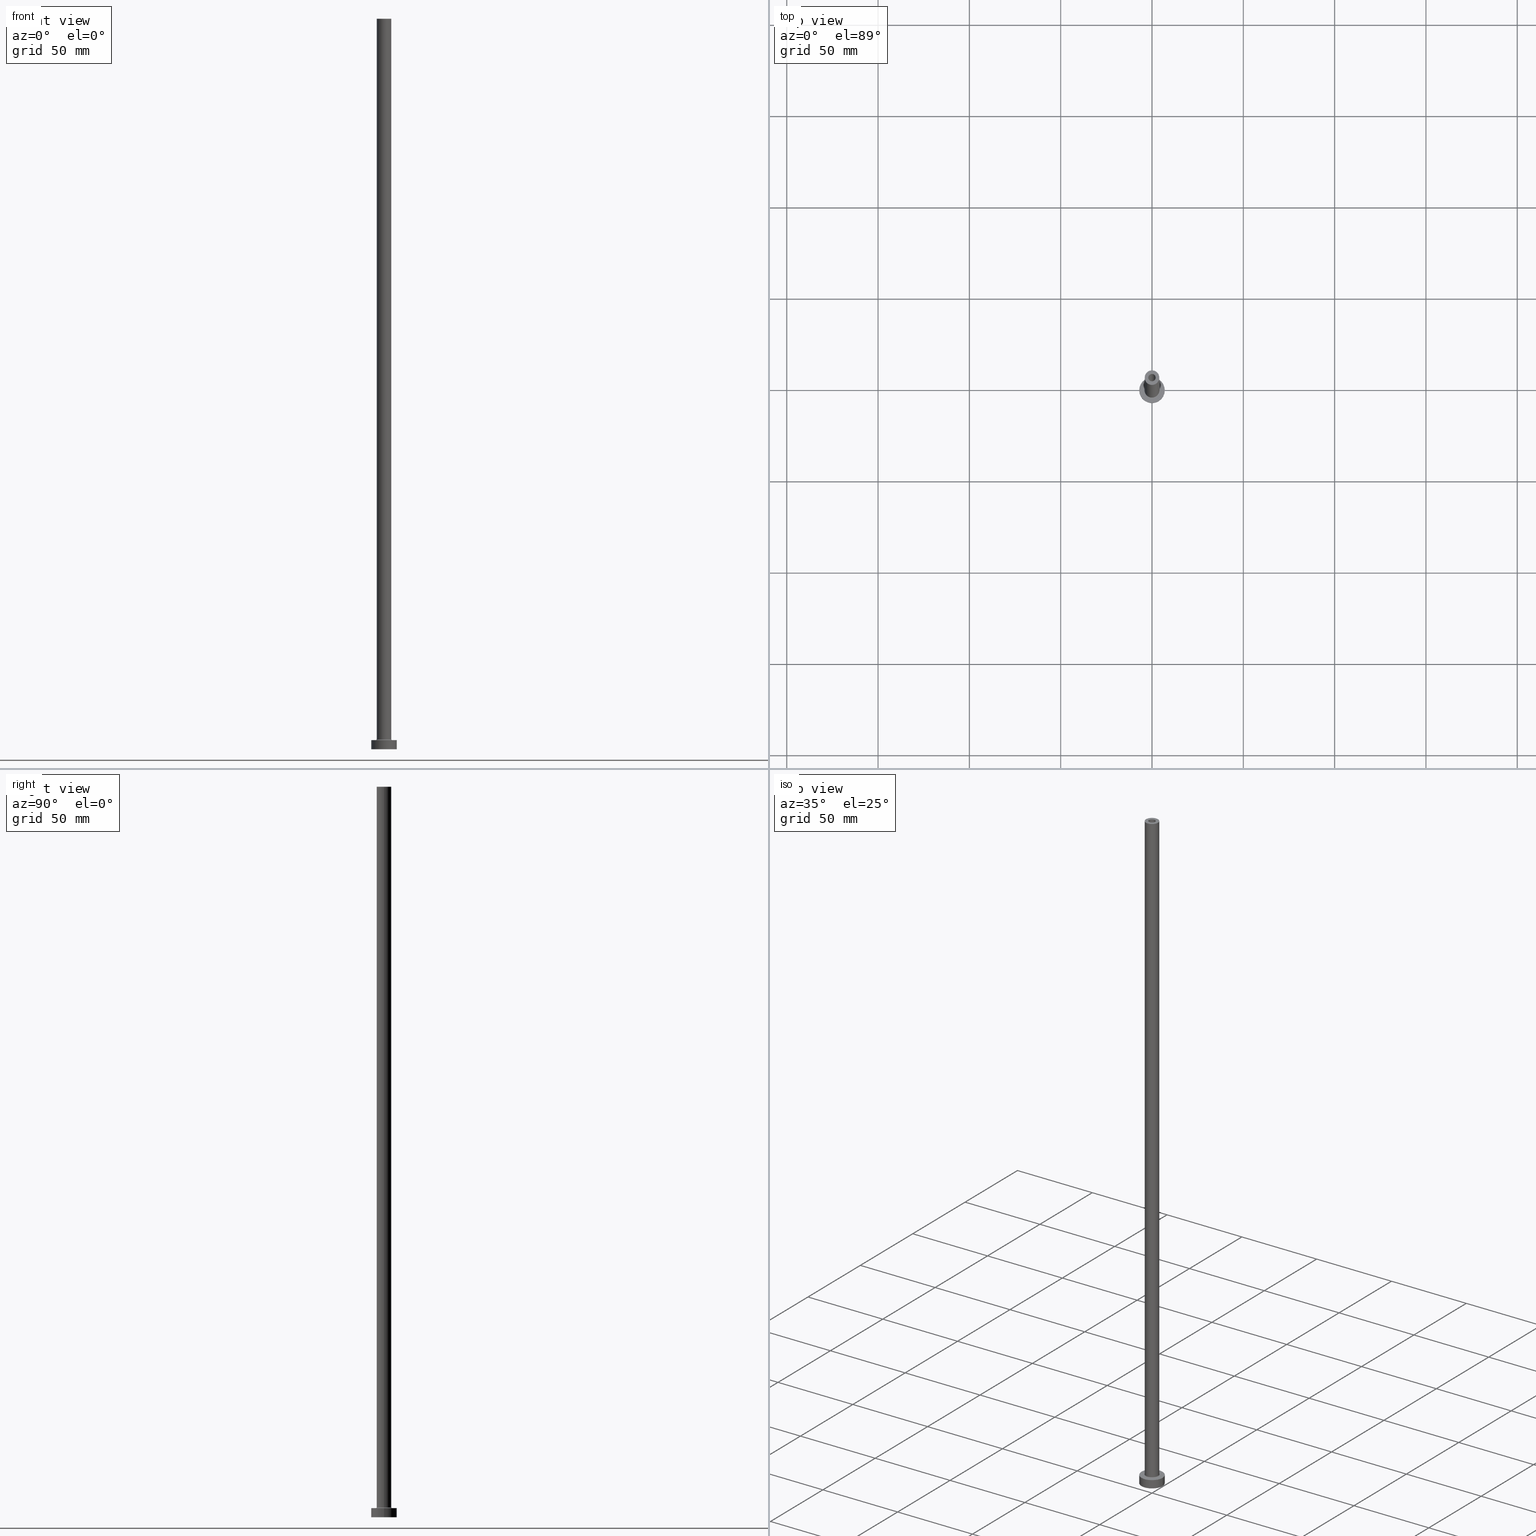
[diagram: canonical four-view strip — front | top / right | iso, engineering-drawing reading convention]
A machine part, canonical four-view strip (front | top / right | iso — engineering-drawing reading convention). The complete STEP part file that produces these views, byte-faithful:
ISO-10303-21;
HEADER;
FILE_DESCRIPTION (( 'STEP AP203' ),
    '1' );
FILE_NAME ('2fec.STEP',
    '2023-02-13T17:37:32',
    ( '' ),
    ( '' ),
    'SwSTEP 2.0',
    'SolidWorks 2019',
    '' );
FILE_SCHEMA (( 'CONFIG_CONTROL_DESIGN' ));
ENDSEC;

DATA;
#1 = DIRECTION ( 'NONE',  ( 0.000000000000000000, 0.000000000000000000, 1.000000000000000000 ) ) ;
#2 = AXIS2_PLACEMENT_3D ( 'NONE', #445, #328, #341 ) ;
#3 = DIRECTION ( 'NONE',  ( -0.000000000000000000, -0.000000000000000000, -1.000000000000000000 ) ) ;
#4 = SECURITY_CLASSIFICATION_LEVEL ( 'unclassified' ) ;
#5 = DIRECTION ( 'NONE',  ( 0.000000000000000000, 0.000000000000000000, 1.000000000000000000 ) ) ;
#6 = DIRECTION ( 'NONE',  ( -1.000000000000000000, 0.000000000000000000, 0.000000000000000000 ) ) ;
#7 = AXIS2_PLACEMENT_3D ( 'NONE', #23, #311, #27 ) ;
#8 = FACE_BOUND ( 'NONE', #199, .T. ) ;
#9 = PRODUCT_DEFINITION ( 'NEZN�M�', '', #44, #202 ) ;
#10 = CARTESIAN_POINT ( 'NONE',  ( -4.000000000000000000, 0.000000000000000000, 5.500000000000005329 ) ) ;
#11 = ORIENTED_EDGE ( 'NONE', *, *, #79, .F. ) ;
#12 = ADVANCED_BREP_SHAPE_REPRESENTATION ( '2fec', ( #240, #331 ), #357 ) ;
#13 = DIRECTION ( 'NONE',  ( 0.000000000000000000, 0.000000000000000000, 1.000000000000000000 ) ) ;
#14 = EDGE_LOOP ( 'NONE', ( #300, #56, #333, #275 ) ) ;
#15 = AXIS2_PLACEMENT_3D ( 'NONE', #271, #201, #278 ) ;
#16 = LOCAL_TIME ( 18, 37, 32.00000000000000000, #143 ) ;
#17 = CYLINDRICAL_SURFACE ( 'NONE', #2, 2.149999999999999911 ) ;
#18 = ORIENTED_EDGE ( 'NONE', *, *, #21, .T. ) ;
#19 = ORIENTED_EDGE ( 'NONE', *, *, #105, .F. ) ;
#20 = CYLINDRICAL_SURFACE ( 'NONE', #161, 2.149999999999999911 ) ;
#21 = EDGE_CURVE ( 'NONE', #312, #167, #282, .T. ) ;
#22 = ORIENTED_EDGE ( 'NONE', *, *, #253, .F. ) ;
#23 = CARTESIAN_POINT ( 'NONE',  ( 0.000000000000000000, 0.000000000000000000, 5.500000000000005329 ) ) ;
#24 = ORIENTED_EDGE ( 'NONE', *, *, #315, .F. ) ;
#25 = EDGE_CURVE ( 'NONE', #292, #51, #329, .T. ) ;
#26 = ORIENTED_EDGE ( 'NONE', *, *, #374, .F. ) ;
#27 = DIRECTION ( 'NONE',  ( 1.000000000000000000, 0.000000000000000000, 0.000000000000000000 ) ) ;
#28 = VERTEX_POINT ( 'NONE', #60 ) ;
#29 = AXIS2_PLACEMENT_3D ( 'NONE', #326, #72, #31 ) ;
#30 = AXIS2_PLACEMENT_3D ( 'NONE', #226, #192, #80 ) ;
#31 = DIRECTION ( 'NONE',  ( 1.000000000000000000, 0.000000000000000000, 0.000000000000000000 ) ) ;
#32 = DIRECTION ( 'NONE',  ( -0.000000000000000000, -0.000000000000000000, -1.000000000000000000 ) ) ;
#33 = DIRECTION ( 'NONE',  ( 1.000000000000000000, 0.000000000000000000, -0.000000000000000000 ) ) ;
#34 = APPROVAL_DATE_TIME ( #279, #198 ) ;
#35 = DIRECTION ( 'NONE',  ( -0.000000000000000000, -0.000000000000000000, -1.000000000000000000 ) ) ;
#36 = CIRCLE ( 'NONE', #30, 2.000000000000000000 ) ;
#37 = APPROVAL_STATUS ( 'not_yet_approved' ) ;
#38 = PLANE ( 'NONE',  #437 ) ;
#39 = CARTESIAN_POINT ( 'NONE',  ( 0.000000000000000000, 0.000000000000000000, 0.000000000000000000 ) ) ;
#40 = EDGE_CURVE ( 'NONE', #382, #28, #145, .T. ) ;
#41 = DIRECTION ( 'NONE',  ( 0.000000000000000000, -1.000000000000000000, 0.000000000000000000 ) ) ;
#42 = ADVANCED_FACE ( 'NONE', ( #98 ), #402, .F. ) ;
#43 = ORIENTED_EDGE ( 'NONE', *, *, #334, .F. ) ;
#44 = PRODUCT_DEFINITION_FORMATION_WITH_SPECIFIED_SOURCE ( 'LIBOVOLN�', '', #53, .NOT_KNOWN. ) ;
#45 = CARTESIAN_POINT ( 'NONE',  ( 0.000000000000000000, 0.000000000000000000, 5.000000000000000000 ) ) ;
#46 = ORIENTED_EDGE ( 'NONE', *, *, #435, .F. ) ;
#47 = PRODUCT_DEFINITION_SHAPE ( 'NONE', 'NONE',  #9 ) ;
#48 = FACE_OUTER_BOUND ( 'NONE', #135, .T. ) ;
#49 = EDGE_LOOP ( 'NONE', ( #11, #458, #156, #65 ) ) ;
#50 = CARTESIAN_POINT ( 'NONE',  ( -4.500000000000000888, 5.510910596163088569E-16, 5.000000000000002665 ) ) ;
#51 = VERTEX_POINT ( 'NONE', #208 ) ;
#52 = VECTOR ( 'NONE', #3, 1000.000000000000000 ) ;
#53 = PRODUCT ( '2fec', '2fec', '', ( #92 ) ) ;
#54 = VECTOR ( 'NONE', #64, 1000.000000000000000 ) ;
#55 = FACE_OUTER_BOUND ( 'NONE', #306, .T. ) ;
#56 = ORIENTED_EDGE ( 'NONE', *, *, #178, .T. ) ;
#57 = UNCERTAINTY_MEASURE_WITH_UNIT (LENGTH_MEASURE( 1.000000000000000082E-05 ), #348, 'distance_accuracy_value', 'NONE');
#58 = DIRECTION ( 'NONE',  ( 1.000000000000000000, 0.000000000000000000, 0.000000000000000000 ) ) ;
#59 = DIRECTION ( 'NONE',  ( 1.000000000000000000, 0.000000000000000000, 0.000000000000000000 ) ) ;
#60 = CARTESIAN_POINT ( 'NONE',  ( 4.000000000000000000, 4.898587196589411843E-16, 400.0000000000000000 ) ) ;
#61 = EDGE_CURVE ( 'NONE', #302, #190, #99, .T. ) ;
#62 = CIRCLE ( 'NONE', #383, 7.000000000000000000 ) ;
#63 = ORIENTED_EDGE ( 'NONE', *, *, #399, .F. ) ;
#64 = DIRECTION ( 'NONE',  ( -0.000000000000000000, -0.000000000000000000, -1.000000000000000000 ) ) ;
#65 = ORIENTED_EDGE ( 'NONE', *, *, #374, .T. ) ;
#66 = EDGE_LOOP ( 'NONE', ( #206, #90 ) ) ;
#67 = PERSON_AND_ORGANIZATION_ROLE ( 'creator' ) ;
#68 = CARTESIAN_POINT ( 'NONE',  ( 0.000000000000000000, 0.000000000000000000, 400.0000000000000000 ) ) ;
#69 = APPROVAL_ROLE ( '' ) ;
#70 = DIRECTION ( 'NONE',  ( 0.000000000000000000, 0.000000000000000000, 1.000000000000000000 ) ) ;
#71 = PERSON_AND_ORGANIZATION ( #308, #115 ) ;
#72 = DIRECTION ( 'NONE',  ( -0.000000000000000000, -0.000000000000000000, -1.000000000000000000 ) ) ;
#73 = APPROVAL_DATE_TIME ( #111, #401 ) ;
#74 = CIRCLE ( 'NONE', #136, 2.149999999999999911 ) ;
#75 = CARTESIAN_POINT ( 'NONE',  ( 0.000000000000000000, 0.000000000000000000, 0.000000000000000000 ) ) ;
#76 = CIRCLE ( 'NONE', #100, 4.000000000000000000 ) ;
#77 = DIRECTION ( 'NONE',  ( -0.000000000000000000, -0.000000000000000000, -1.000000000000000000 ) ) ;
#78 = ADVANCED_FACE ( 'NONE', ( #148, #391 ), #434, .T. ) ;
#79 = EDGE_CURVE ( 'NONE', #28, #81, #460, .T. ) ;
#80 = DIRECTION ( 'NONE',  ( 1.000000000000000000, 0.000000000000000000, 0.000000000000000000 ) ) ;
#81 = VERTEX_POINT ( 'NONE', #286 ) ;
#82 = DIRECTION ( 'NONE',  ( 1.000000000000000000, 0.000000000000000000, 0.000000000000000000 ) ) ;
#83 = VERTEX_POINT ( 'NONE', #360 ) ;
#84 = TOROIDAL_SURFACE ( 'NONE', #7, 4.500000000000000888, 0.5000000000000000000 ) ;
#85 = ADVANCED_FACE ( 'NONE', ( #397 ), #180, .T. ) ;
#86 = CARTESIAN_POINT ( 'NONE',  ( 0.000000000000000000, 0.000000000000000000, 5.500000000000005329 ) ) ;
#87 = DIRECTION ( 'NONE',  ( 0.000000000000000000, 0.000000000000000000, 1.000000000000000000 ) ) ;
#88 = ORIENTED_EDGE ( 'NONE', *, *, #175, .T. ) ;
#89 = DIRECTION ( 'NONE',  ( 0.000000000000000000, 0.000000000000000000, -1.000000000000000000 ) ) ;
#90 = ORIENTED_EDGE ( 'NONE', *, *, #310, .F. ) ;
#91 = AXIS2_PLACEMENT_3D ( 'NONE', #159, #77, #6 ) ;
#92 = MECHANICAL_CONTEXT ( 'NONE', #197, 'mechanical' ) ;
#93 = VERTEX_POINT ( 'NONE', #216 ) ;
#94 = CYLINDRICAL_SURFACE ( 'NONE', #222, 7.000000000000000000 ) ;
#95 = EDGE_CURVE ( 'NONE', #120, #456, #74, .T. ) ;
#96 = DIRECTION ( 'NONE',  ( 1.000000000000000000, 0.000000000000000000, 0.000000000000000000 ) ) ;
#97 = FACE_OUTER_BOUND ( 'NONE', #384, .T. ) ;
#98 = FACE_OUTER_BOUND ( 'NONE', #298, .T. ) ;
#99 = CIRCLE ( 'NONE', #29, 2.149999999999999911 ) ;
#100 = AXIS2_PLACEMENT_3D ( 'NONE', #110, #366, #281 ) ;
#101 = LINE ( 'NONE', #452, #54 ) ;
#102 = ORIENTED_EDGE ( 'NONE', *, *, #399, .T. ) ;
#103 = CALENDAR_DATE ( 2023, 13, 2 ) ;
#104 = ORIENTED_EDGE ( 'NONE', *, *, #320, .T. ) ;
#105 = EDGE_CURVE ( 'NONE', #338, #312, #195, .T. ) ;
#106 = PERSON_AND_ORGANIZATION_ROLE ( 'design_supplier' ) ;
#107 = CARTESIAN_POINT ( 'NONE',  ( 2.000000000000000000, 2.449293598294705921E-16, 400.0000000000000000 ) ) ;
#108 = AXIS2_PLACEMENT_3D ( 'NONE', #205, #354, #345 ) ;
#109 = DIRECTION ( 'NONE',  ( 0.000000000000000000, 0.000000000000000000, 1.000000000000000000 ) ) ;
#110 = CARTESIAN_POINT ( 'NONE',  ( 0.000000000000000000, 0.000000000000000000, 5.500000000000005329 ) ) ;
#111 = DATE_AND_TIME ( #103, #138 ) ;
#112 = CARTESIAN_POINT ( 'NONE',  ( 4.500000000000000888, 0.000000000000000000, 5.000000000000002665 ) ) ;
#113 = AXIS2_PLACEMENT_3D ( 'NONE', #185, #150, #142 ) ;
#114 = CARTESIAN_POINT ( 'NONE',  ( 0.000000000000000000, 0.000000000000000000, 400.0000000000000000 ) ) ;
#115 = ORGANIZATION ( 'NEUR�EN�', 'NEUR�EN�', '' ) ;
#116 = EDGE_CURVE ( 'NONE', #51, #128, #322, .T. ) ;
#117 = DIRECTION ( 'NONE',  ( 1.000000000000000000, 0.000000000000000000, 0.000000000000000000 ) ) ;
#118 = ORIENTED_EDGE ( 'NONE', *, *, #253, .T. ) ;
#119 = CARTESIAN_POINT ( 'NONE',  ( 2.149999999999999911, 2.632990618166809235E-16, 361.0811183182044033 ) ) ;
#120 = VERTEX_POINT ( 'NONE', #359 ) ;
#121 = DIRECTION ( 'NONE',  ( 0.000000000000000000, 0.000000000000000000, 1.000000000000000000 ) ) ;
#122 = CC_DESIGN_PERSON_AND_ORGANIZATION_ASSIGNMENT ( #426, #106, ( #44 ) ) ;
#123 = AXIS2_PLACEMENT_3D ( 'NONE', #229, #87, #193 ) ;
#124 = CARTESIAN_POINT ( 'NONE',  ( 0.000000000000000000, 0.000000000000000000, 5.000000000000000000 ) ) ;
#125 = ORIENTED_EDGE ( 'NONE', *, *, #320, .F. ) ;
#126 = DIRECTION ( 'NONE',  ( -1.000000000000000000, 0.000000000000000000, 0.000000000000000000 ) ) ;
#127 = EDGE_CURVE ( 'NONE', #167, #312, #316, .T. ) ;
#128 = VERTEX_POINT ( 'NONE', #289 ) ;
#129 = AXIS2_PLACEMENT_3D ( 'NONE', #405, #41, #189 ) ;
#130 = APPLICATION_PROTOCOL_DEFINITION ( 'international standard', 'config_control_design', 1994, #197 ) ;
#131 = ORIENTED_EDGE ( 'NONE', *, *, #334, .T. ) ;
#132 = DIRECTION ( 'NONE',  ( -0.000000000000000000, -0.000000000000000000, -1.000000000000000000 ) ) ;
#133 = ORIENTED_EDGE ( 'NONE', *, *, #154, .F. ) ;
#134 = FACE_OUTER_BOUND ( 'NONE', #261, .T. ) ;
#135 = EDGE_LOOP ( 'NONE', ( #24, #425, #380, #416 ) ) ;
#136 = AXIS2_PLACEMENT_3D ( 'NONE', #184, #1, #356 ) ;
#137 = CIRCLE ( 'NONE', #210, 4.000000000000000000 ) ;
#138 = LOCAL_TIME ( 18, 37, 32.00000000000000000, #174 ) ;
#139 = CARTESIAN_POINT ( 'NONE',  ( 0.000000000000000000, 0.000000000000000000, 5.000000000000000000 ) ) ;
#140 = EDGE_LOOP ( 'NONE', ( #46, #417, #411, #355 ) ) ;
#141 = APPROVAL_ROLE ( '' ) ;
#142 = DIRECTION ( 'NONE',  ( 1.000000000000000000, 0.000000000000000000, 0.000000000000000000 ) ) ;
#143 = COORDINATED_UNIVERSAL_TIME_OFFSET ( 1, 0, .AHEAD. ) ;
#144 = DIRECTION ( 'NONE',  ( 1.000000000000000000, 0.000000000000000000, 0.000000000000000000 ) ) ;
#145 = CIRCLE ( 'NONE', #290, 4.000000000000000000 ) ;
#146 = DATE_TIME_ROLE ( 'classification_date' ) ;
#147 = CIRCLE ( 'NONE', #305, 7.000000000000000000 ) ;
#148 = FACE_BOUND ( 'NONE', #237, .T. ) ;
#149 = DIRECTION ( 'NONE',  ( 1.000000000000000000, 0.000000000000000000, -0.000000000000000000 ) ) ;
#150 = DIRECTION ( 'NONE',  ( -0.000000000000000000, -0.000000000000000000, -1.000000000000000000 ) ) ;
#151 = APPROVAL ( #250, 'NEUR�EN�' ) ;
#152 = VECTOR ( 'NONE', #393, 1000.000000000000000 ) ;
#153 = CARTESIAN_POINT ( 'NONE',  ( 7.000000000000000000, 8.572527594031473190E-16, 5.000000000000000000 ) ) ;
#154 = EDGE_CURVE ( 'NONE', #81, #338, #76, .T. ) ;
#155 = CYLINDRICAL_SURFACE ( 'NONE', #91, 4.000000000000000000 ) ;
#156 = ORIENTED_EDGE ( 'NONE', *, *, #187, .T. ) ;
#157 = ADVANCED_FACE ( 'NONE', ( #254, #214 ), #38, .T. ) ;
#158 = CC_DESIGN_PERSON_AND_ORGANIZATION_ASSIGNMENT ( #217, #215, ( #431 ) ) ;
#159 = CARTESIAN_POINT ( 'NONE',  ( 0.000000000000000000, 0.000000000000000000, 400.0000000000000000 ) ) ;
#160 = DIRECTION ( 'NONE',  ( 1.000000000000000000, 0.000000000000000000, 0.000000000000000000 ) ) ;
#161 = AXIS2_PLACEMENT_3D ( 'NONE', #410, #207, #454 ) ;
#162 = DIRECTION ( 'NONE',  ( -1.000000000000000000, 0.000000000000000000, 0.000000000000000000 ) ) ;
#163 = ORIENTED_EDGE ( 'NONE', *, *, #428, .F. ) ;
#164 = PERSON_AND_ORGANIZATION ( #308, #115 ) ;
#165 = VERTEX_POINT ( 'NONE', #362 ) ;
#166 = DIRECTION ( 'NONE',  ( 1.000000000000000000, 0.000000000000000000, 0.000000000000000000 ) ) ;
#167 = VERTEX_POINT ( 'NONE', #112 ) ;
#168 = CIRCLE ( 'NONE', #412, 2.000000000000000000 ) ;
#169 = CC_DESIGN_SECURITY_CLASSIFICATION ( #431, ( #44 ) ) ;
#170 = DIRECTION ( 'NONE',  ( -1.000000000000000000, 0.000000000000000000, 0.000000000000000000 ) ) ;
#171 = ORIENTED_EDGE ( 'NONE', *, *, #127, .F. ) ;
#172 = DIRECTION ( 'NONE',  ( -1.000000000000000000, 0.000000000000000000, 0.000000000000000000 ) ) ;
#173 = ORIENTED_EDGE ( 'NONE', *, *, #25, .F. ) ;
#174 = COORDINATED_UNIVERSAL_TIME_OFFSET ( 1, 0, .AHEAD. ) ;
#175 = EDGE_CURVE ( 'NONE', #128, #93, #147, .T. ) ;
#176 = CARTESIAN_POINT ( 'NONE',  ( 0.000000000000000000, 0.000000000000000000, 0.000000000000000000 ) ) ;
#177 = CARTESIAN_POINT ( 'NONE',  ( 0.000000000000000000, 0.000000000000000000, 5.000000000000000000 ) ) ;
#178 = EDGE_CURVE ( 'NONE', #314, #83, #318, .T. ) ;
#179 = PERSON_AND_ORGANIZATION ( #308, #115 ) ;
#180 = CYLINDRICAL_SURFACE ( 'NONE', #339, 4.000000000000000000 ) ;
#181 = PERSON_AND_ORGANIZATION ( #308, #115 ) ;
#182 = VECTOR ( 'NONE', #372, 1000.000000000000000 ) ;
#183 = APPROVAL_PERSON_ORGANIZATION ( #179, #198, #321 ) ;
#184 = CARTESIAN_POINT ( 'NONE',  ( 0.000000000000000000, 0.000000000000000000, 355.0000000000000568 ) ) ;
#185 = CARTESIAN_POINT ( 'NONE',  ( 0.000000000000000000, 0.000000000000000000, 5.000000000000000000 ) ) ;
#186 = CARTESIAN_POINT ( 'NONE',  ( 0.000000000000000000, 0.000000000000000000, 355.0000000000000568 ) ) ;
#187 = EDGE_CURVE ( 'NONE', #382, #338, #319, .T. ) ;
#188 = LOCAL_TIME ( 18, 37, 32.00000000000000000, #317 ) ;
#189 = DIRECTION ( 'NONE',  ( 0.000000000000000000, 0.000000000000000000, -1.000000000000000000 ) ) ;
#190 = VERTEX_POINT ( 'NONE', #461 ) ;
#191 = CC_DESIGN_DATE_AND_TIME_ASSIGNMENT ( #365, #146, ( #431 ) ) ;
#192 = DIRECTION ( 'NONE',  ( 0.000000000000000000, 0.000000000000000000, 1.000000000000000000 ) ) ;
#193 = DIRECTION ( 'NONE',  ( 1.000000000000000000, 0.000000000000000000, 0.000000000000000000 ) ) ;
#194 = CARTESIAN_POINT ( 'NONE',  ( 2.000000000000000000, 2.449293598294705921E-16, 400.0000000000000000 ) ) ;
#195 = CIRCLE ( 'NONE', #257, 0.5000000000000004441 ) ;
#196 = VECTOR ( 'NONE', #369, 1000.000000000000000 ) ;
#197 = APPLICATION_CONTEXT ( 'configuration controlled 3d designs of mechanical parts and assemblies' ) ;
#198 = APPROVAL ( #37, 'NEUR�EN�' ) ;
#199 = EDGE_LOOP ( 'NONE', ( #351, #118 ) ) ;
#200 = CARTESIAN_POINT ( 'NONE',  ( -4.000000000000000000, 0.000000000000000000, 400.0000000000000000 ) ) ;
#201 = DIRECTION ( 'NONE',  ( -0.000000000000000000, -0.000000000000000000, -1.000000000000000000 ) ) ;
#202 = DESIGN_CONTEXT ( 'detailed design', #236, 'design' ) ;
#203 = ORIENTED_EDGE ( 'NONE', *, *, #127, .T. ) ;
#204 = PRODUCT_RELATED_PRODUCT_CATEGORY ( 'detail', '', ( #53 ) ) ;
#205 = CARTESIAN_POINT ( 'NONE',  ( 0.000000000000000000, 0.000000000000000000, 400.0000000000000000 ) ) ;
#206 = ORIENTED_EDGE ( 'NONE', *, *, #175, .F. ) ;
#207 = DIRECTION ( 'NONE',  ( 0.000000000000000000, 0.000000000000000000, -1.000000000000000000 ) ) ;
#208 = CARTESIAN_POINT ( 'NONE',  ( -7.000000000000000000, 0.000000000000000000, 5.000000000000000000 ) ) ;
#209 = CARTESIAN_POINT ( 'NONE',  ( -4.500000000000000888, 5.510910596163089556E-16, 5.500000000000005329 ) ) ;
#210 = AXIS2_PLACEMENT_3D ( 'NONE', #86, #375, #58 ) ;
#211 = CALENDAR_DATE ( 2023, 13, 2 ) ;
#212 = DIRECTION ( 'NONE',  ( 1.000000000000000000, 0.000000000000000000, 0.000000000000000000 ) ) ;
#213 = ADVANCED_FACE ( 'NONE', ( #430, #256 ), #395, .F. ) ;
#214 = FACE_OUTER_BOUND ( 'NONE', #239, .T. ) ;
#215 = PERSON_AND_ORGANIZATION_ROLE ( 'classification_officer' ) ;
#216 = CARTESIAN_POINT ( 'NONE',  ( 7.000000000000000000, 8.572527594031473190E-16, 0.000000000000000000 ) ) ;
#217 = PERSON_AND_ORGANIZATION ( #308, #115 ) ;
#218 = CARTESIAN_POINT ( 'NONE',  ( -7.000000000000000000, 0.000000000000000000, 5.000000000000000000 ) ) ;
#219 = FACE_OUTER_BOUND ( 'NONE', #140, .T. ) ;
#220 = DIRECTION ( 'NONE',  ( 0.000000000000000000, 0.000000000000000000, 1.000000000000000000 ) ) ;
#221 = ORIENTED_EDGE ( 'NONE', *, *, #25, .T. ) ;
#222 = AXIS2_PLACEMENT_3D ( 'NONE', #139, #132, #170 ) ;
#223 = CC_DESIGN_APPROVAL ( #401, ( #44 ) ) ;
#224 = CC_DESIGN_DATE_AND_TIME_ASSIGNMENT ( #285, #429, ( #9 ) ) ;
#225 = ORIENTED_EDGE ( 'NONE', *, *, #227, .T. ) ;
#226 = CARTESIAN_POINT ( 'NONE',  ( 0.000000000000000000, 0.000000000000000000, 355.0000000000000568 ) ) ;
#227 = EDGE_CURVE ( 'NONE', #456, #120, #413, .T. ) ;
#228 = ORIENTED_EDGE ( 'NONE', *, *, #105, .T. ) ;
#229 = CARTESIAN_POINT ( 'NONE',  ( 0.000000000000000000, 0.000000000000000000, 355.0000000000000568 ) ) ;
#230 = ORIENTED_EDGE ( 'NONE', *, *, #330, .F. ) ;
#231 = ADVANCED_FACE ( 'NONE', ( #48 ), #17, .F. ) ;
#232 = CLOSED_SHELL ( 'NONE', ( #248, #408, #448, #274, #379, #284, #157, #213, #85, #78, #42, #231, #303, #390 ) ) ;
#233 = ORIENTED_EDGE ( 'NONE', *, *, #178, .F. ) ;
#234 = AXIS2_PLACEMENT_3D ( 'NONE', #75, #109, #251 ) ;
#235 =( NAMED_UNIT ( * ) SI_UNIT ( $, .STERADIAN. ) SOLID_ANGLE_UNIT ( ) );
#236 = APPLICATION_CONTEXT ( 'configuration controlled 3d designs of mechanical parts and assemblies' ) ;
#237 = EDGE_LOOP ( 'NONE', ( #387, #163 ) ) ;
#238 = CARTESIAN_POINT ( 'NONE',  ( 0.000000000000000000, 0.000000000000000000, 400.0000000000000000 ) ) ;
#239 = EDGE_LOOP ( 'NONE', ( #131, #221 ) ) ;
#240 = MANIFOLD_SOLID_BREP ( 'Odebrat vysunut�m4', #232 ) ;
#241 = DIRECTION ( 'NONE',  ( 1.000000000000000000, 0.000000000000000000, 0.000000000000000000 ) ) ;
#242 = ORIENTED_EDGE ( 'NONE', *, *, #40, .T. ) ;
#243 = CIRCLE ( 'NONE', #422, 4.000000000000000000 ) ;
#244 = CARTESIAN_POINT ( 'NONE',  ( 0.000000000000000000, 0.000000000000000000, 5.000000000000000000 ) ) ;
#245 = ORIENTED_EDGE ( 'NONE', *, *, #330, .T. ) ;
#246 = EDGE_CURVE ( 'NONE', #165, #83, #295, .T. ) ;
#247 = CARTESIAN_POINT ( 'NONE',  ( -4.000000000000000000, 0.000000000000000000, 400.0000000000000000 ) ) ;
#248 = ADVANCED_FACE ( 'NONE', ( #438 ), #447, .F. ) ;
#249 = AXIS2_PLACEMENT_3D ( 'NONE', #39, #13, #376 ) ;
#250 = APPROVAL_STATUS ( 'not_yet_approved' ) ;
#251 = DIRECTION ( 'NONE',  ( 1.000000000000000000, 0.000000000000000000, -0.000000000000000000 ) ) ;
#252 = CALENDAR_DATE ( 2023, 13, 2 ) ;
#253 = EDGE_CURVE ( 'NONE', #83, #165, #36, .T. ) ;
#254 = FACE_BOUND ( 'NONE', #377, .T. ) ;
#255 = APPROVAL_DATE_TIME ( #459, #151 ) ;
#256 = FACE_OUTER_BOUND ( 'NONE', #66, .T. ) ;
#257 = AXIS2_PLACEMENT_3D ( 'NONE', #209, #327, #280 ) ;
#258 = AXIS2_PLACEMENT_3D ( 'NONE', #293, #263, #82 ) ;
#259 = DIRECTION ( 'NONE',  ( 0.000000000000000000, 0.000000000000000000, 1.000000000000000000 ) ) ;
#260 = CARTESIAN_POINT ( 'NONE',  ( -2.149999999999999911, 0.000000000000000000, 0.000000000000000000 ) ) ;
#261 = EDGE_LOOP ( 'NONE', ( #26, #228, #171, #125 ) ) ;
#262 = EDGE_CURVE ( 'NONE', #456, #302, #296, .T. ) ;
#263 = DIRECTION ( 'NONE',  ( -0.000000000000000000, -0.000000000000000000, -1.000000000000000000 ) ) ;
#264 = EDGE_LOOP ( 'NONE', ( #242, #336 ) ) ;
#265 = DIRECTION ( 'NONE',  ( 1.000000000000000000, 0.000000000000000000, 0.000000000000000000 ) ) ;
#266 = FACE_OUTER_BOUND ( 'NONE', #344, .T. ) ;
#267 = CARTESIAN_POINT ( 'NONE',  ( -2.149999999999999911, 0.000000000000000000, 361.0811183182044033 ) ) ;
#268 = PERSON_AND_ORGANIZATION ( #308, #115 ) ;
#269 = CIRCLE ( 'NONE', #249, 7.000000000000000000 ) ;
#270 = ORIENTED_EDGE ( 'NONE', *, *, #95, .F. ) ;
#271 = CARTESIAN_POINT ( 'NONE',  ( 0.000000000000000000, 0.000000000000000000, 5.000000000000000000 ) ) ;
#272 = CYLINDRICAL_SURFACE ( 'NONE', #457, 2.000000000000000000 ) ;
#273 = CARTESIAN_POINT ( 'NONE',  ( 0.000000000000000000, 0.000000000000000000, 400.0000000000000000 ) ) ;
#274 = ADVANCED_FACE ( 'NONE', ( #219 ), #155, .T. ) ;
#275 = ORIENTED_EDGE ( 'NONE', *, *, #440, .F. ) ;
#276 = AXIS2_PLACEMENT_3D ( 'NONE', #68, #5, #33 ) ;
#277 = CIRCLE ( 'NONE', #129, 0.5000000000000004441 ) ;
#278 = DIRECTION ( 'NONE',  ( 1.000000000000000000, 0.000000000000000000, 0.000000000000000000 ) ) ;
#279 = DATE_AND_TIME ( #287, #371 ) ;
#280 = DIRECTION ( 'NONE',  ( -1.000000000000000000, 1.224646799147351482E-16, 0.000000000000000000 ) ) ;
#281 = DIRECTION ( 'NONE',  ( 1.000000000000000000, 0.000000000000000000, 0.000000000000000000 ) ) ;
#282 = CIRCLE ( 'NONE', #15, 4.500000000000000888 ) ;
#283 = VECTOR ( 'NONE', #89, 1000.000000000000000 ) ;
#284 = ADVANCED_FACE ( 'NONE', ( #266 ), #294, .T. ) ;
#285 = DATE_AND_TIME ( #211, #16 ) ;
#286 = CARTESIAN_POINT ( 'NONE',  ( 4.000000000000000000, 4.898587196589411843E-16, 5.500000000000005329 ) ) ;
#287 = CALENDAR_DATE ( 2023, 13, 2 ) ;
#288 = DIRECTION ( 'NONE',  ( -0.000000000000000000, -0.000000000000000000, -1.000000000000000000 ) ) ;
#289 = CARTESIAN_POINT ( 'NONE',  ( -7.000000000000000000, 0.000000000000000000, 0.000000000000000000 ) ) ;
#290 = AXIS2_PLACEMENT_3D ( 'NONE', #273, #419, #59 ) ;
#291 = LINE ( 'NONE', #119, #196 ) ;
#292 = VERTEX_POINT ( 'NONE', #153 ) ;
#293 = CARTESIAN_POINT ( 'NONE',  ( 0.000000000000000000, 0.000000000000000000, 0.000000000000000000 ) ) ;
#294 = CYLINDRICAL_SURFACE ( 'NONE', #364, 7.000000000000000000 ) ;
#295 = CIRCLE ( 'NONE', #123, 2.000000000000000000 ) ;
#296 = LINE ( 'NONE', #267, #182 ) ;
#297 = CC_DESIGN_PERSON_AND_ORGANIZATION_ASSIGNMENT ( #71, #67, ( #44 ) ) ;
#298 = EDGE_LOOP ( 'NONE', ( #19, #133, #104, #373 ) ) ;
#299 = DIRECTION ( 'NONE',  ( -0.000000000000000000, -0.000000000000000000, -1.000000000000000000 ) ) ;
#300 = ORIENTED_EDGE ( 'NONE', *, *, #368, .T. ) ;
#301 = PERSON_AND_ORGANIZATION_ROLE ( 'design_owner' ) ;
#302 = VERTEX_POINT ( 'NONE', #260 ) ;
#303 = ADVANCED_FACE ( 'NONE', ( #8, #400 ), #407, .F. ) ;
#304 = FACE_OUTER_BOUND ( 'NONE', #406, .T. ) ;
#305 = AXIS2_PLACEMENT_3D ( 'NONE', #176, #436, #212 ) ;
#306 = EDGE_LOOP ( 'NONE', ( #233, #455, #443, #22 ) ) ;
#307 = DIRECTION ( 'NONE',  ( 0.000000000000000000, 0.000000000000000000, -1.000000000000000000 ) ) ;
#308 = PERSON ( 'NEUR�EN�', 'NEUR�EN�', 'NEUR�EN�', ('NEUR�EN�'), ('NEUR�EN�'), ('NEUR�EN�') ) ;
#309 = EDGE_LOOP ( 'NONE', ( #450, #230 ) ) ;
#310 = EDGE_CURVE ( 'NONE', #93, #128, #269, .T. ) ;
#311 = DIRECTION ( 'NONE',  ( 0.000000000000000000, 0.000000000000000000, 1.000000000000000000 ) ) ;
#312 = VERTEX_POINT ( 'NONE', #50 ) ;
#313 = CARTESIAN_POINT ( 'NONE',  ( -2.149999999999999911, 0.000000000000000000, 355.0000000000000568 ) ) ;
#314 = VERTEX_POINT ( 'NONE', #194 ) ;
#315 = EDGE_CURVE ( 'NONE', #120, #190, #291, .T. ) ;
#316 = CIRCLE ( 'NONE', #113, 4.500000000000000888 ) ;
#317 = COORDINATED_UNIVERSAL_TIME_OFFSET ( 1, 0, .AHEAD. ) ;
#318 = LINE ( 'NONE', #107, #152 ) ;
#319 = LINE ( 'NONE', #247, #403 ) ;
#320 = EDGE_CURVE ( 'NONE', #81, #167, #277, .T. ) ;
#321 = APPROVAL_ROLE ( '' ) ;
#322 = LINE ( 'NONE', #218, #52 ) ;
#323 = AXIS2_PLACEMENT_3D ( 'NONE', #432, #70, #144 ) ;
#324 = AXIS2_PLACEMENT_3D ( 'NONE', #186, #398, #117 ) ;
#325 = SHAPE_DEFINITION_REPRESENTATION ( #47, #12 ) ;
#326 = CARTESIAN_POINT ( 'NONE',  ( 0.000000000000000000, 0.000000000000000000, 0.000000000000000000 ) ) ;
#327 = DIRECTION ( 'NONE',  ( 1.224646799147353207E-16, 1.000000000000000000, -0.000000000000000000 ) ) ;
#328 = DIRECTION ( 'NONE',  ( 0.000000000000000000, 0.000000000000000000, -1.000000000000000000 ) ) ;
#329 = CIRCLE ( 'NONE', #349, 7.000000000000000000 ) ;
#330 = EDGE_CURVE ( 'NONE', #190, #302, #340, .T. ) ;
#331 = AXIS2_PLACEMENT_3D ( 'NONE', #421, #418, #241 ) ;
#332 = DIRECTION ( 'NONE',  ( 1.000000000000000000, 0.000000000000000000, -0.000000000000000000 ) ) ;
#333 = ORIENTED_EDGE ( 'NONE', *, *, #246, .F. ) ;
#334 = EDGE_CURVE ( 'NONE', #51, #292, #62, .T. ) ;
#335 = DIRECTION ( 'NONE',  ( 0.000000000000000000, 0.000000000000000000, 1.000000000000000000 ) ) ;
#336 = ORIENTED_EDGE ( 'NONE', *, *, #435, .T. ) ;
#337 = CARTESIAN_POINT ( 'NONE',  ( 0.000000000000000000, 0.000000000000000000, 400.0000000000000000 ) ) ;
#338 = VERTEX_POINT ( 'NONE', #10 ) ;
#339 = AXIS2_PLACEMENT_3D ( 'NONE', #114, #32, #388 ) ;
#340 = CIRCLE ( 'NONE', #258, 2.149999999999999911 ) ;
#341 = DIRECTION ( 'NONE',  ( -1.000000000000000000, 0.000000000000000000, 0.000000000000000000 ) ) ;
#342 = ORIENTED_EDGE ( 'NONE', *, *, #227, .F. ) ;
#343 = CARTESIAN_POINT ( 'NONE',  ( 0.000000000000000000, 0.000000000000000000, 400.0000000000000000 ) ) ;
#344 = EDGE_LOOP ( 'NONE', ( #63, #43, #423, #88 ) ) ;
#345 = DIRECTION ( 'NONE',  ( 1.000000000000000000, 0.000000000000000000, 0.000000000000000000 ) ) ;
#346 = EDGE_LOOP ( 'NONE', ( #342, #270 ) ) ;
#347 = CC_DESIGN_PERSON_AND_ORGANIZATION_ASSIGNMENT ( #164, #301, ( #53 ) ) ;
#348 =( LENGTH_UNIT ( ) NAMED_UNIT ( * ) SI_UNIT ( .MILLI., .METRE. ) );
#349 = AXIS2_PLACEMENT_3D ( 'NONE', #244, #386, #96 ) ;
#350 = CC_DESIGN_APPROVAL ( #151, ( #9 ) ) ;
#351 = ORIENTED_EDGE ( 'NONE', *, *, #246, .T. ) ;
#352 = LINE ( 'NONE', #378, #283 ) ;
#353 = ORIENTED_EDGE ( 'NONE', *, *, #315, .T. ) ;
#354 = DIRECTION ( 'NONE',  ( 0.000000000000000000, 0.000000000000000000, 1.000000000000000000 ) ) ;
#355 = ORIENTED_EDGE ( 'NONE', *, *, #187, .F. ) ;
#356 = DIRECTION ( 'NONE',  ( 1.000000000000000000, 0.000000000000000000, 0.000000000000000000 ) ) ;
#357 =( GEOMETRIC_REPRESENTATION_CONTEXT ( 3 ) GLOBAL_UNCERTAINTY_ASSIGNED_CONTEXT ( ( #57 ) ) GLOBAL_UNIT_ASSIGNED_CONTEXT ( ( #348, #385, #235 ) ) REPRESENTATION_CONTEXT ( 'NONE', 'WORKASPACE' ) );
#358 = APPROVAL_STATUS ( 'not_yet_approved' ) ;
#359 = CARTESIAN_POINT ( 'NONE',  ( 2.149999999999999911, 2.632990618166809235E-16, 355.0000000000000568 ) ) ;
#360 = CARTESIAN_POINT ( 'NONE',  ( 2.000000000000000000, 2.449293598294705921E-16, 355.0000000000000568 ) ) ;
#361 = CALENDAR_DATE ( 2023, 13, 2 ) ;
#362 = CARTESIAN_POINT ( 'NONE',  ( -2.000000000000000000, 0.000000000000000000, 355.0000000000000568 ) ) ;
#363 = VECTOR ( 'NONE', #288, 1000.000000000000000 ) ;
#364 = AXIS2_PLACEMENT_3D ( 'NONE', #124, #299, #126 ) ;
#365 = DATE_AND_TIME ( #361, #415 ) ;
#366 = DIRECTION ( 'NONE',  ( 0.000000000000000000, 0.000000000000000000, 1.000000000000000000 ) ) ;
#367 = CARTESIAN_POINT ( 'NONE',  ( 0.000000000000000000, 0.000000000000000000, 355.0000000000000568 ) ) ;
#368 = EDGE_CURVE ( 'NONE', #409, #314, #168, .T. ) ;
#369 = DIRECTION ( 'NONE',  ( 0.000000000000000000, 0.000000000000000000, -1.000000000000000000 ) ) ;
#370 = APPROVAL_PERSON_ORGANIZATION ( #181, #401, #141 ) ;
#371 = LOCAL_TIME ( 18, 37, 32.00000000000000000, #433 ) ;
#372 = DIRECTION ( 'NONE',  ( 0.000000000000000000, 0.000000000000000000, -1.000000000000000000 ) ) ;
#373 = ORIENTED_EDGE ( 'NONE', *, *, #21, .F. ) ;
#374 = EDGE_CURVE ( 'NONE', #338, #81, #137, .T. ) ;
#375 = DIRECTION ( 'NONE',  ( 0.000000000000000000, 0.000000000000000000, 1.000000000000000000 ) ) ;
#376 = DIRECTION ( 'NONE',  ( 1.000000000000000000, 0.000000000000000000, 0.000000000000000000 ) ) ;
#377 = EDGE_LOOP ( 'NONE', ( #203, #18 ) ) ;
#378 = CARTESIAN_POINT ( 'NONE',  ( -2.000000000000000000, 0.000000000000000000, 400.0000000000000000 ) ) ;
#379 = ADVANCED_FACE ( 'NONE', ( #97 ), #94, .T. ) ;
#380 = ORIENTED_EDGE ( 'NONE', *, *, #262, .T. ) ;
#381 = CARTESIAN_POINT ( 'NONE',  ( -2.000000000000000000, 0.000000000000000000, 400.0000000000000000 ) ) ;
#382 = VERTEX_POINT ( 'NONE', #200 ) ;
#383 = AXIS2_PLACEMENT_3D ( 'NONE', #45, #335, #160 ) ;
#384 = EDGE_LOOP ( 'NONE', ( #173, #102, #453, #446 ) ) ;
#385 =( NAMED_UNIT ( * ) PLANE_ANGLE_UNIT ( ) SI_UNIT ( $, .RADIAN. ) );
#386 = DIRECTION ( 'NONE',  ( 0.000000000000000000, 0.000000000000000000, 1.000000000000000000 ) ) ;
#387 = ORIENTED_EDGE ( 'NONE', *, *, #368, .F. ) ;
#388 = DIRECTION ( 'NONE',  ( -1.000000000000000000, 0.000000000000000000, 0.000000000000000000 ) ) ;
#389 = APPROVAL_PERSON_ORGANIZATION ( #268, #151, #69 ) ;
#390 = ADVANCED_FACE ( 'NONE', ( #55 ), #272, .F. ) ;
#391 = FACE_OUTER_BOUND ( 'NONE', #264, .T. ) ;
#392 = PERSON_AND_ORGANIZATION_ROLE ( 'creator' ) ;
#393 = DIRECTION ( 'NONE',  ( 0.000000000000000000, 0.000000000000000000, -1.000000000000000000 ) ) ;
#394 = PERSON_AND_ORGANIZATION ( #308, #115 ) ;
#395 = PLANE ( 'NONE',  #234 ) ;
#396 = AXIS2_PLACEMENT_3D ( 'NONE', #337, #441, #162 ) ;
#397 = FACE_OUTER_BOUND ( 'NONE', #49, .T. ) ;
#398 = DIRECTION ( 'NONE',  ( 0.000000000000000000, 0.000000000000000000, 1.000000000000000000 ) ) ;
#399 = EDGE_CURVE ( 'NONE', #292, #93, #101, .T. ) ;
#400 = FACE_OUTER_BOUND ( 'NONE', #346, .T. ) ;
#401 = APPROVAL ( #358, 'NEUR�EN�' ) ;
#402 = TOROIDAL_SURFACE ( 'NONE', #323, 4.500000000000000888, 0.5000000000000000000 ) ;
#403 = VECTOR ( 'NONE', #35, 1000.000000000000000 ) ;
#404 = CC_DESIGN_APPROVAL ( #198, ( #431 ) ) ;
#405 = CARTESIAN_POINT ( 'NONE',  ( 4.500000000000000888, 0.000000000000000000, 5.500000000000005329 ) ) ;
#406 = EDGE_LOOP ( 'NONE', ( #225, #353, #245, #439 ) ) ;
#407 = PLANE ( 'NONE',  #451 ) ;
#408 = ADVANCED_FACE ( 'NONE', ( #304 ), #20, .F. ) ;
#409 = VERTEX_POINT ( 'NONE', #381 ) ;
#410 = CARTESIAN_POINT ( 'NONE',  ( 0.000000000000000000, 0.000000000000000000, 361.0811183182044033 ) ) ;
#411 = ORIENTED_EDGE ( 'NONE', *, *, #154, .T. ) ;
#412 = AXIS2_PLACEMENT_3D ( 'NONE', #442, #121, #265 ) ;
#413 = CIRCLE ( 'NONE', #324, 2.149999999999999911 ) ;
#414 = DIRECTION ( 'NONE',  ( 0.000000000000000000, 0.000000000000000000, 1.000000000000000000 ) ) ;
#415 = LOCAL_TIME ( 18, 37, 32.00000000000000000, #424 ) ;
#416 = ORIENTED_EDGE ( 'NONE', *, *, #61, .T. ) ;
#417 = ORIENTED_EDGE ( 'NONE', *, *, #79, .T. ) ;
#418 = DIRECTION ( 'NONE',  ( 0.000000000000000000, 0.000000000000000000, 1.000000000000000000 ) ) ;
#419 = DIRECTION ( 'NONE',  ( 0.000000000000000000, 0.000000000000000000, 1.000000000000000000 ) ) ;
#420 = CC_DESIGN_PERSON_AND_ORGANIZATION_ASSIGNMENT ( #394, #392, ( #9 ) ) ;
#421 = CARTESIAN_POINT ( 'NONE',  ( 0.000000000000000000, 0.000000000000000000, 0.000000000000000000 ) ) ;
#422 = AXIS2_PLACEMENT_3D ( 'NONE', #343, #414, #166 ) ;
#423 = ORIENTED_EDGE ( 'NONE', *, *, #116, .T. ) ;
#424 = COORDINATED_UNIVERSAL_TIME_OFFSET ( 1, 0, .AHEAD. ) ;
#425 = ORIENTED_EDGE ( 'NONE', *, *, #95, .T. ) ;
#426 = PERSON_AND_ORGANIZATION ( #308, #115 ) ;
#427 = CARTESIAN_POINT ( 'NONE',  ( 4.000000000000000000, 4.898587196589411843E-16, 400.0000000000000000 ) ) ;
#428 = EDGE_CURVE ( 'NONE', #314, #409, #444, .T. ) ;
#429 = DATE_TIME_ROLE ( 'creation_date' ) ;
#430 = FACE_BOUND ( 'NONE', #309, .T. ) ;
#431 = SECURITY_CLASSIFICATION ( '', '', #4 ) ;
#432 = CARTESIAN_POINT ( 'NONE',  ( 0.000000000000000000, 0.000000000000000000, 5.500000000000005329 ) ) ;
#433 = COORDINATED_UNIVERSAL_TIME_OFFSET ( 1, 0, .AHEAD. ) ;
#434 = PLANE ( 'NONE',  #276 ) ;
#435 = EDGE_CURVE ( 'NONE', #28, #382, #243, .T. ) ;
#436 = DIRECTION ( 'NONE',  ( 0.000000000000000000, 0.000000000000000000, 1.000000000000000000 ) ) ;
#437 = AXIS2_PLACEMENT_3D ( 'NONE', #177, #259, #149 ) ;
#438 = FACE_OUTER_BOUND ( 'NONE', #14, .T. ) ;
#439 = ORIENTED_EDGE ( 'NONE', *, *, #262, .F. ) ;
#440 = EDGE_CURVE ( 'NONE', #409, #165, #352, .T. ) ;
#441 = DIRECTION ( 'NONE',  ( 0.000000000000000000, 0.000000000000000000, -1.000000000000000000 ) ) ;
#442 = CARTESIAN_POINT ( 'NONE',  ( 0.000000000000000000, 0.000000000000000000, 400.0000000000000000 ) ) ;
#443 = ORIENTED_EDGE ( 'NONE', *, *, #440, .T. ) ;
#444 = CIRCLE ( 'NONE', #108, 2.000000000000000000 ) ;
#445 = CARTESIAN_POINT ( 'NONE',  ( 0.000000000000000000, 0.000000000000000000, 361.0811183182044033 ) ) ;
#446 = ORIENTED_EDGE ( 'NONE', *, *, #116, .F. ) ;
#447 = CYLINDRICAL_SURFACE ( 'NONE', #396, 2.000000000000000000 ) ;
#448 = ADVANCED_FACE ( 'NONE', ( #134 ), #84, .F. ) ;
#449 = APPLICATION_PROTOCOL_DEFINITION ( 'international standard', 'config_control_design', 1994, #236 ) ;
#450 = ORIENTED_EDGE ( 'NONE', *, *, #61, .F. ) ;
#451 = AXIS2_PLACEMENT_3D ( 'NONE', #367, #220, #332 ) ;
#452 = CARTESIAN_POINT ( 'NONE',  ( 7.000000000000000000, 8.572527594031473190E-16, 5.000000000000000000 ) ) ;
#453 = ORIENTED_EDGE ( 'NONE', *, *, #310, .T. ) ;
#454 = DIRECTION ( 'NONE',  ( -1.000000000000000000, 0.000000000000000000, 0.000000000000000000 ) ) ;
#455 = ORIENTED_EDGE ( 'NONE', *, *, #428, .T. ) ;
#456 = VERTEX_POINT ( 'NONE', #313 ) ;
#457 = AXIS2_PLACEMENT_3D ( 'NONE', #238, #307, #172 ) ;
#458 = ORIENTED_EDGE ( 'NONE', *, *, #40, .F. ) ;
#459 = DATE_AND_TIME ( #252, #188 ) ;
#460 = LINE ( 'NONE', #427, #363 ) ;
#461 = CARTESIAN_POINT ( 'NONE',  ( 2.149999999999999911, 2.632990618166809235E-16, 0.000000000000000000 ) ) ;
ENDSEC;
END-ISO-10303-21;
